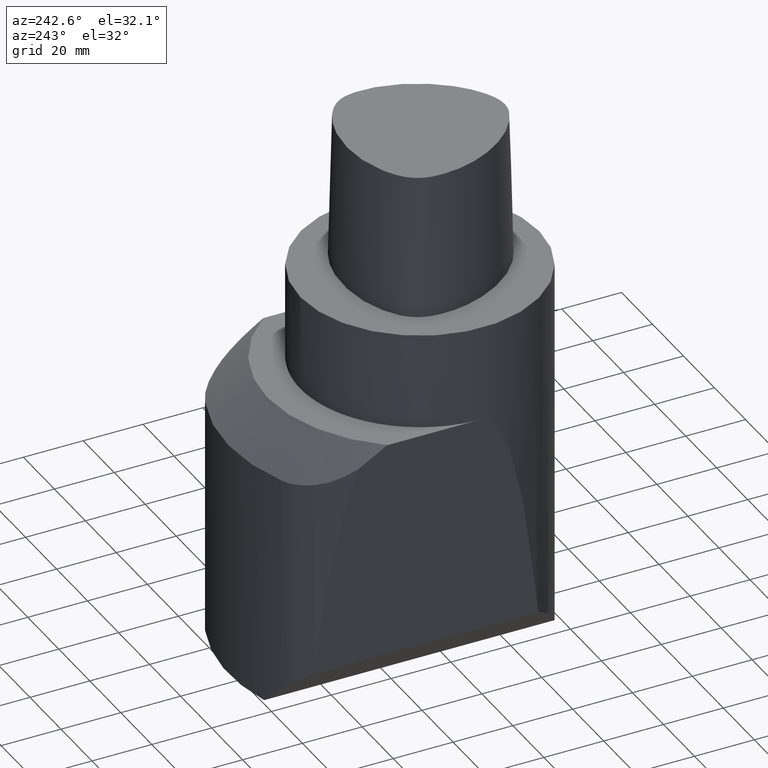
[diagram: clean part render]
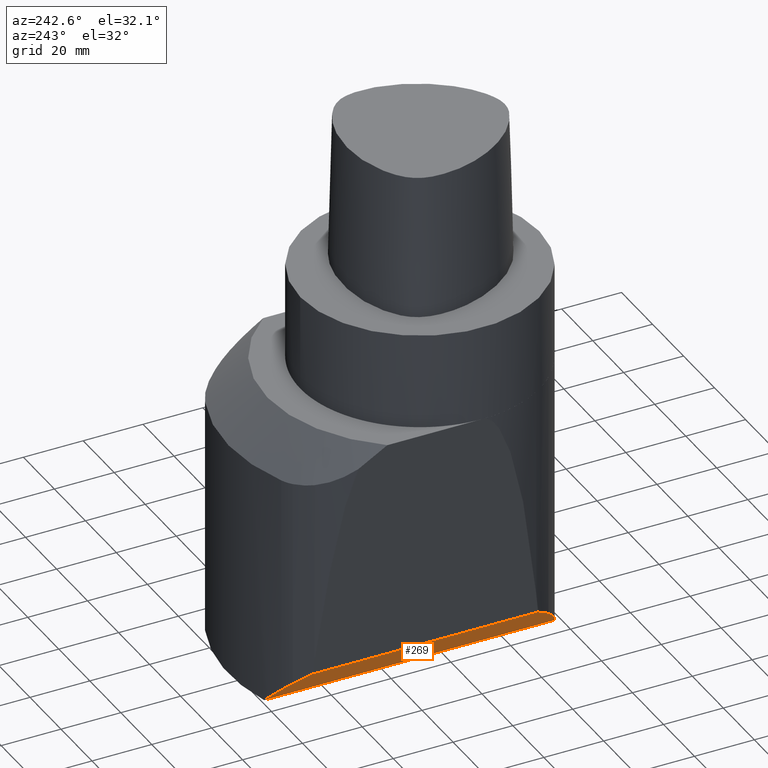
[diagram: same view with one face highlighted and labeled with its STEP entity id]
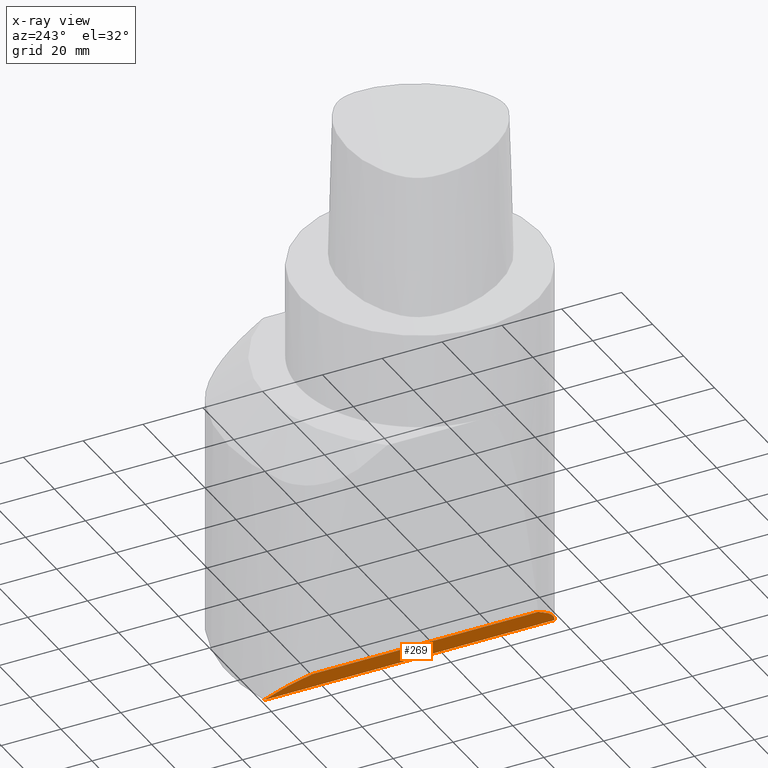
[diagram: x-ray of the same camera — body ghosted, the highlighted face saturated]
A machine part, auxiliary view. The second image highlights one B-rep face of the part: STEP entity #269.
The next image is the same camera in x-ray: the body ghosted, the highlighted face saturated — about 0% of this face is hidden behind the body in this view.
In plain terms, the highlighted planar face has unit normal (-0.7071, 0, -0.7071).
Its self-contained STEP definition (entity closure, byte-faithful):
#105=EDGE_CURVE('240[2]',#305,#306,#307,.T.);
#117=EDGE_CURVE('240[2]',#324,#325,#326,.T.);
#143=EDGE_CURVE('240[2]',#366,#324,#367,.T.);
#186=EDGE_CURVE('240[2]',#305,#425,#426,.F.);
#206=EDGE_CURVE('240[2]',#306,#407,#451,.T.);
#238=EDGE_CURVE('240[2]',#425,#325,#490,.F.);
#269=ADVANCED_FACE('240[2]',(#527),#528,.T.);
#275=EDGE_CURVE('240[2]',#366,#407,#534,.F.);
#305=VERTEX_POINT('',#559);
#306=VERTEX_POINT('',#560);
#307=ELLIPSE('',#561,35.3553390060258,25.0);
#324=VERTEX_POINT('',#678);
#325=VERTEX_POINT('',#679);
#326=B_SPLINE_CURVE_WITH_KNOTS('',3,(#680,#681,#682,#683,#684,#685,#686,#687,#688,#689,#690,#691),.UNSPECIFIED.,.F.,.F.,(4,2,2,2,2,4),(-175.538141070274,-175.479261481458,-175.15793466903,-174.392329393093,-171.030326775526,-170.093878497624),.UNSPECIFIED.);
#366=VERTEX_POINT('',#749);
#367=ELLIPSE('',#750,56.5685424096412,40.0);
#407=VERTEX_POINT('',#876);
#425=VERTEX_POINT('',#938);
#426=B_SPLINE_CURVE_WITH_KNOTS('',3,(#939,#940,#941,#942,#943,#944,#945,#946),.UNSPECIFIED.,.F.,.F.,(4,2,2,4),(-204.878198107065,-204.631340542666,-197.931753718615,-195.659056606798),.UNSPECIFIED.);
#451=ELLIPSE('',#982,90.5096678554264,64.0000000000003);
#490=LINE('',#1433,#1434);
#527=FACE_OUTER_BOUND('',#1487,.T.);
#528=PLANE('',#1488);
#534=LINE('',#1503,#1504);
#559=CARTESIAN_POINT('',(-28.29054136469,57.1745486429695,-114.709458599247));
#560=CARTESIAN_POINT('',(-24.6153846153831,59.0769230769245,-118.384615337473));
#561=AXIS2_PLACEMENT_3D('',#1621,#1622,#1623);
#678=CARTESIAN_POINT('',(-28.2905413646907,-28.2779997399503,-114.709458599246));
#679=CARTESIAN_POINT('',(-33.1927473655532,-22.3213156473424,-109.807252613167));
#680=CARTESIAN_POINT('',(-28.2905413646907,-28.2779997399503,-114.709458599246));
#681=CARTESIAN_POINT('',(-28.309842062676,-28.258690481879,-114.690157901319));
#682=CARTESIAN_POINT('',(-28.3291295821897,-28.2393548483322,-114.670870381864));
#683=CARTESIAN_POINT('',(-28.4535903780425,-28.1143275072564,-114.546409586386));
#684=CARTESIAN_POINT('',(-28.5583980496744,-28.0078608855346,-114.44160191507));
#685=CARTESIAN_POINT('',(-28.9115006445737,-27.645113240572,-114.088499321236));
#686=CARTESIAN_POINT('',(-29.1539161039658,-27.3892416967969,-113.846083862575));
#687=CARTESIAN_POINT('',(-30.461521996051,-25.9714413006834,-112.538477974433));
#688=CARTESIAN_POINT('',(-31.4710181159656,-24.7413436216045,-111.528981857561));
#689=CARTESIAN_POINT('',(-32.6714875595446,-23.0819154087392,-110.328512417602));
#690=CARTESIAN_POINT('',(-32.935289492501,-22.7041401032962,-110.064710485442));
#691=CARTESIAN_POINT('',(-33.1927473655532,-22.3213156473424,-109.807252613167));
#749=CARTESIAN_POINT('',(-17.9999999329059,-35.7211422327912,-125.000000000003));
#750=AXIS2_PLACEMENT_3D('',#1676,#1677,#1678);
#876=CARTESIAN_POINT('',(-17.9999999329059,61.4166101508003,-125.000000000003));
#938=CARTESIAN_POINT('',(-33.1927473655513,53.147149727209,-109.80725261317));
#939=CARTESIAN_POINT('',(-33.1927473655513,53.147149727209,-109.80725261317));
#940=CARTESIAN_POINT('',(-33.1506991107654,53.1917508976782,-109.849300867829));
#941=CARTESIAN_POINT('',(-33.1084468239707,53.2362430376121,-109.891553154493));
#942=CARTESIAN_POINT('',(-31.9065182391499,54.4926925710999,-111.09348173569));
#943=CARTESIAN_POINT('',(-30.6695464898406,55.5414448493285,-112.33045348127));
#944=CARTESIAN_POINT('',(-28.9706000175869,56.738860776801,-114.029399948401));
#945=CARTESIAN_POINT('',(-28.6782284135922,56.9312107165338,-114.321771551513));
#946=CARTESIAN_POINT('',(-28.29054136469,57.1745486429695,-114.709458599247));
#982=AXIS2_PLACEMENT_3D('',#1756,#1757,#1758);
#1433=CARTESIAN_POINT('',(-33.1927473655551,-162.24514126896,-109.807252613163));
#1434=VECTOR('',#1805,1.0);
#1487=EDGE_LOOP('',(#1868,#1869,#1870,#1871,#1872,#1873,#1874));
#1488=AXIS2_PLACEMENT_3D('',#1875,#1876,#1877);
#1503=CARTESIAN_POINT('',(-17.9999999329059,-65.1225706344801,-125.000000000003));
#1504=VECTOR('',#1879,1.0);
#1621=CARTESIAN_POINT('',(-14.9999999999992,36.0000000000009,-127.999999923864));
#1622=DIRECTION('',(-0.707106780120515,8.65956057541007E-017,-0.70710678225258));
#1623=DIRECTION('',(0.70710678225258,1.73191211247099E-016,-0.707106780120515));
#1676=CARTESIAN_POINT('',(8.43895058305648E-013,8.5265128291212E-013,-142.999999878636));
#1677=DIRECTION('',(-0.707106780120515,8.65956057541007E-017,-0.70710678225258));
#1678=DIRECTION('',(0.70710678225258,1.73191211247099E-016,-0.707106780120515));
#1756=CARTESIAN_POINT('',(-8.75622460647214E-015,-4.54747350886464E-013,-142.999999878635));
#1757=DIRECTION('',(-0.707106780120515,8.65956057541007E-017,-0.70710678225258));
#1758=DIRECTION('',(-0.70710678225258,2.1594176446722E-015,0.707106780120515));
#1805=DIRECTION('',(-3.59545812250935E-032,1.0,1.22464679914735E-016));
#1868=ORIENTED_EDGE('',*,*,#105,.T.);
#1869=ORIENTED_EDGE('',*,*,#206,.T.);
#1870=ORIENTED_EDGE('',*,*,#275,.F.);
#1871=ORIENTED_EDGE('',*,*,#143,.T.);
#1872=ORIENTED_EDGE('',*,*,#117,.T.);
#1873=ORIENTED_EDGE('',*,*,#238,.F.);
#1874=ORIENTED_EDGE('',*,*,#186,.F.);
#1875=CARTESIAN_POINT('',(-24.7801156812693,-162.24514126896,-118.219884272083));
#1876=DIRECTION('',(-0.707106780120515,8.65956057541007E-017,-0.70710678225258));
#1877=DIRECTION('',(-0.70710678225258,0.0,0.707106780120515));
#1879=DIRECTION('',(-1.2246468028399E-016,-1.0,0.0));